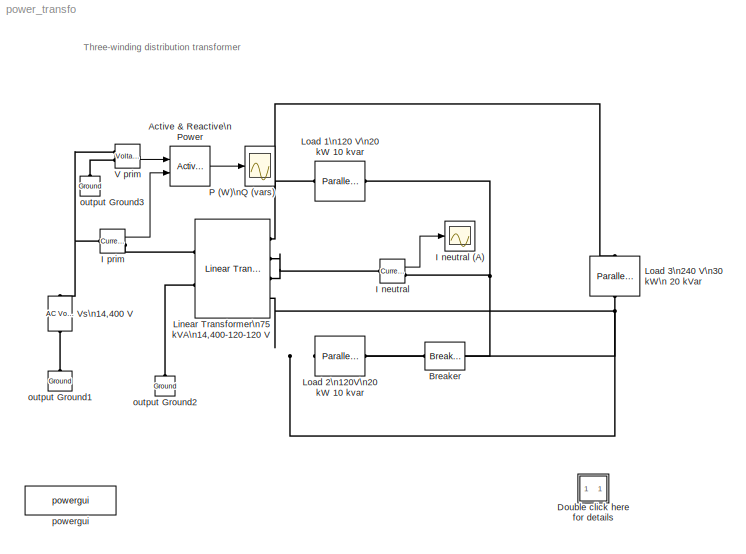
MODEL power_transfo
KIND model
BLOCK [Reference] Active & Reactive\nPower  REF=powerlib_extras/Measurements/Active & Reactive\nPower
  Ports = [2, 1]
  ShowPortLabels = on
  SourceBlock = powerlib_extras/Measurements/Active & Reactive\nPower
  SourceType = Active & Reactive Power
  f1 = 60
BLOCK [Reference] Breaker  REF=powerlib/Elements/Breaker
  AttributesFormatString = \\n
  BreakerResistance = 1e-5
  External = off
  InitialState = 1
  Measurements = None
  Ports = [0, 0, 0, 0, 0, 1, 1]
  ShowPortLabels = on
  SnubberCapacitance = 0
  SnubberResistance = inf
  SourceBlock = powerlib/Elements/Breaker
  SourceType = Breaker
  SwitchingTimes = [ .05 ]
BLOCK [SubSystem] Double click here for details
  MaskDisplay = disp('?')
  MaskIconFrame = on
  MaskIconOpaque = on
  MaskIconRotate = none
  MaskIconUnits = autoscale
  MinAlgLoopOccurrences = off
  Ports = []
  RTWSystemCode = Auto
  TreatAsAtomicUnit = off
BLOCK [Reference] I neutral  REF=powerlib/Measurements/Current Measurement
  AttributesFormatString = \\n
  OutputType = Magnitude
  PSBequivalent = 0
  PhasorSimulation = off
  Ports = [0, 1, 0, 0, 0, 1, 1]
  ShowPortLabels = on
  SourceBlock = powerlib/Measurements/Current Measurement
  SourceType = Current Measurement
  Tag = PoWeRsYsTeMmEaSuReMeNt
BLOCK [Scope] I neutral (A)
  DataFormat = Array
  NumInputPorts = 1
  Ports = [1]
  TickLabels = on
  TimeRange = 0.2
  YMax = 300
  YMin = -300
BLOCK [Reference] I prim  REF=powerlib/Measurements/Current Measurement
  AttributesFormatString = \\n
  OutputType = Magnitude
  PSBequivalent = 0
  PhasorSimulation = off
  Ports = [0, 1, 0, 0, 0, 1, 1]
  ShowPortLabels = on
  SourceBlock = powerlib/Measurements/Current Measurement
  SourceType = Current Measurement
  Tag = PoWeRsYsTeMmEaSuReMeNt
BLOCK [Reference] Linear Transformer\n75 kVA\n14,400-120-120 V  REF=powerlib/Elements/Linear Transformer
  LConnTagsString = a|b
  LeftPortType = p1
  Measurements = None
  NominalPower = [75e3,60]
  PhysicalDomain = powersysdomain
  Ports = [0, 0, 0, 0, 0, 2, 4]
  RConnTagsString = A|B|C|D
  RightPortType = p1
  RmLm = [50,50]
  SourceBlock = powerlib/Elements/Linear Transformer
  SourceType = Linear Transformer
  SubClassName = unknown
  ThreeWindings = on
  winding1 = [14.4e3 0.01,0.03]
  winding2 = [120,0.02,0]
  winding3 = [120,0.02,0]
BLOCK [Reference] Load 1\n120 V\n20 kW 10 kvar  REF=powerlib/Elements/Parallel RLC Load
  ActivePower = 20e3
  AttributesFormatString = \\n
  CapacitivePower = 0
  InductivePower = 10e3
  LConnTagsString = a
  LeftPortType = p1
  Measurements = None
  NominalFrequency = 60
  NominalVoltage = 120
  PhysicalDomain = powersysdomain
  Ports = [0, 0, 0, 0, 0, 1, 1]
  RConnTagsString = __new0
  RightPortType = p1
  SourceBlock = powerlib/Elements/Parallel RLC Load
  SourceType = Parallel RLC Load
  SubClassName = unknown
BLOCK [Reference] Load 2\n120V\n20 kW 10 kvar  REF=powerlib/Elements/Parallel RLC Load
  ActivePower = 20e3
  AttributesFormatString = \\n
  CapacitivePower = 0
  InductivePower = 10e3
  LConnTagsString = a
  LeftPortType = p1
  Measurements = None
  NominalFrequency = 60
  NominalVoltage = 120
  PhysicalDomain = powersysdomain
  Ports = [0, 0, 0, 0, 0, 1, 1]
  RConnTagsString = __new0
  RightPortType = p1
  SourceBlock = powerlib/Elements/Parallel RLC Load
  SourceType = Parallel RLC Load
  SubClassName = unknown
BLOCK [Reference] Load 3\n240 V\n30 kW\n 20 kVar  REF=powerlib/Elements/Parallel RLC Load
  ActivePower = 30e3
  AttributesFormatString = \\n
  CapacitivePower = 20e3
  InductivePower = 0
  LConnTagsString = a
  LeftPortType = p1
  Measurements = None
  NominalFrequency = 60
  NominalVoltage = 240
  PhysicalDomain = powersysdomain
  Ports = [0, 0, 0, 0, 0, 1, 1]
  RConnTagsString = __new0
  RightPortType = p1
  SourceBlock = powerlib/Elements/Parallel RLC Load
  SourceType = Parallel RLC Load
  SubClassName = unknown
BLOCK [Scope] P (W)\nQ (vars)
  DataFormat = Array
  MaskIconFrame = on
  MaskIconOpaque = on
  MaskIconRotate = none
  MaskIconUnits = autoscale
  NumInputPorts = 1
  Ports = [1]
  TickLabels = on
  TimeRange = 0.2
  YMax = 80000
  YMin = -20000
BLOCK [Reference] V prim  REF=powerlib/Measurements/Voltage Measurement
  AttributesFormatString = \\n
  OutputType = Magnitude
  PSBequivalent = 0
  PhasorSimulation = off
  Ports = [0, 1, 0, 0, 0, 2]
  ShowPortLabels = on
  SourceBlock = powerlib/Measurements/Voltage Measurement
  SourceType = Voltage Measurement
  Tag = PoWeRsYsTeMmEaSuReMeNt
BLOCK [Reference] Vs\n14,400 V  REF=powerlib/Electrical\nSources/AC Voltage Source
  Amplitude = 14400*sqrt(2)
  AttributesFormatString = \\n
  Description = source block
  Frequency = 60
  Measurements = None
  Phase = 0
  Ports = [0, 0, 0, 0, 0, 1, 1]
  SampleTime = 0
  ShowPortLabels = on
  SourceBlock = powerlib/Electrical\nSources/AC Voltage Source
  SourceType = AC Voltage Source
BLOCK [Reference] output Ground1  REF=powerlib/Elements/Ground
  AttributesFormatString = \\n
  LConnTagsString = a
  LeftPortType = p1
  PhysicalDomain = powersysdomain
  Ports = [0, 0, 0, 0, 0, 1]
  RightPortType = p1
  SourceBlock = powerlib/Elements/Ground
  SourceType = Ground
  SubClassName = unknown
BLOCK [Reference] output Ground2  REF=powerlib/Elements/Ground
  AttributesFormatString = \\n
  LConnTagsString = a
  LeftPortType = p1
  PhysicalDomain = powersysdomain
  Ports = [0, 0, 0, 0, 0, 1]
  RightPortType = p1
  SourceBlock = powerlib/Elements/Ground
  SourceType = Ground
  SubClassName = unknown
BLOCK [Reference] output Ground3  REF=powerlib/Elements/Ground
  AttributesFormatString = \\n
  LConnTagsString = a
  LeftPortType = p1
  PhysicalDomain = powersysdomain
  Ports = [0, 0, 0, 0, 0, 1]
  RightPortType = p1
  SourceBlock = powerlib/Elements/Ground
  SourceType = Ground
  SubClassName = unknown
BLOCK [Reference] powergui  REF=powerlib/powergui
  DisplayStyle = off
  Frange = logspace(0,3,50)
  FreqAxis = off
  MaxFrequency = 1000
  Ports = []
  Priority = 2
  RmsSteady = 1
  ShowPortLabels = on
  SourceBlock = powerlib/powergui
  SourceType = PSB option menu block
  StartTime = 0.0
  Ts = 0
  Xlog = off
  Ylog = off
  ZoomFFT = on
  cycles = 1
  display = off
  echomessages = on
  frequency = 60
  frequencyindice = 1
  frequencyindicesteady = 1
  fundamental = 60
  methode = off
  save = off
  variable = ZData
ANNOTATION (root): Three-winding distribution transformer
ANNOTATION Double click here for details: Circuit Description
ANNOTATION Double click here for details: Demonstration
ANNOTATION Double click here for details: G. Sybille (Hydro-Quebec)
ANNOTATION Double click here for details: Open the powergui block to obtain the initial voltage and current phasors in steady state.\nAs loads are balanced the neutral current is practically zero.\n\nFurthermore, as the inductive reactive power of Load 1 and Load 2 (2*10 kvar) is compensated by the capacitive reactive power\nof Load 3 (20 kvar), the primary current is almost in phase with voltage The small phase shift (-2.8deg.) is due to...<+487ch>
ANNOTATION Double click here for details: The transformer primary is connected to a high voltage source (14,400 V rms).\nTwo identical inductive loads (20 kW -10 kvar) are connected to the two secondaries.\nA third capacitive load (30 kW -20 kvar) is fed at 240 V.\n\nInitially, the circuit breaker in series with Load 2 is closed, so that the system is balanced.
ANNOTATION Double click here for details: This demonstration illustrates the use of the linear transformer to simulate\na three-winding distribution transformer rated 75 kVA - 14400/120/120 V.
LINE Active & Reactive\nPower:1 -> P (W)\nQ (vars):1
LINE I neutral:1 -> I neutral (A):1
LINE I prim:1 -> Active & Reactive\nPower:2
LINE V prim:1 -> Active & Reactive\nPower:1
PLINE Breaker:LConn1 -- Load 2\n120V\n20 kW 10 kvar:RConn1
PNET net1: Breaker:RConn1 -- I neutral:RConn1 -- Load 1\n120 V\n20 kW 10 kvar:RConn1
PNET net2: I neutral:LConn1 -- Linear Transformer\n75 kVA\n14,400-120-120 V:RConn2 -- Linear Transformer\n75 kVA\n14,400-120-120 V:RConn3
PNET net3: I prim:LConn1 -- V prim:LConn1 -- Vs\n14,400 V:RConn1
PLINE I prim:RConn1 -- Linear Transformer\n75 kVA\n14,400-120-120 V:LConn1
PLINE Linear Transformer\n75 kVA\n14,400-120-120 V:LConn2 -- output Ground2:LConn1
PNET net4: Linear Transformer\n75 kVA\n14,400-120-120 V:RConn1 -- Load 1\n120 V\n20 kW 10 kvar:LConn1 -- Load 3\n240 V\n30 kW\n 20 kVar:LConn1
PNET net5: Linear Transformer\n75 kVA\n14,400-120-120 V:RConn4 -- Load 2\n120V\n20 kW 10 kvar:LConn1 -- Load 3\n240 V\n30 kW\n 20 kVar:RConn1
PLINE V prim:LConn2 -- output Ground3:LConn1
PLINE Vs\n14,400 V:LConn1 -- output Ground1:LConn1
note: PNET lines group multi-terminal physical nets as a canonical sorted terminal list (undirected conserving connections); 2-terminal nets keep the pairwise PLINE form
